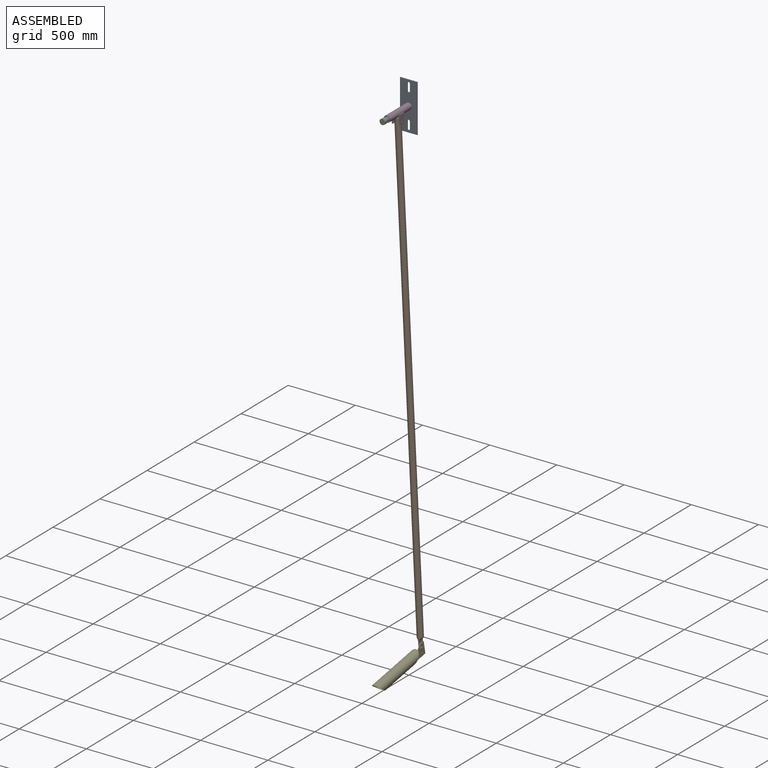
[diagram: assembled view]
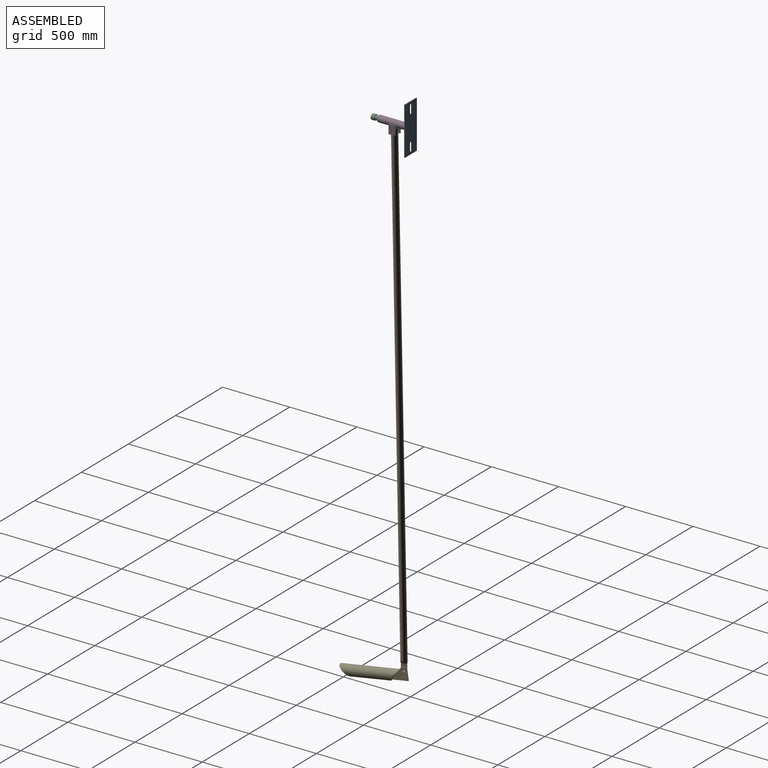
[diagram: assembled view, second angle]
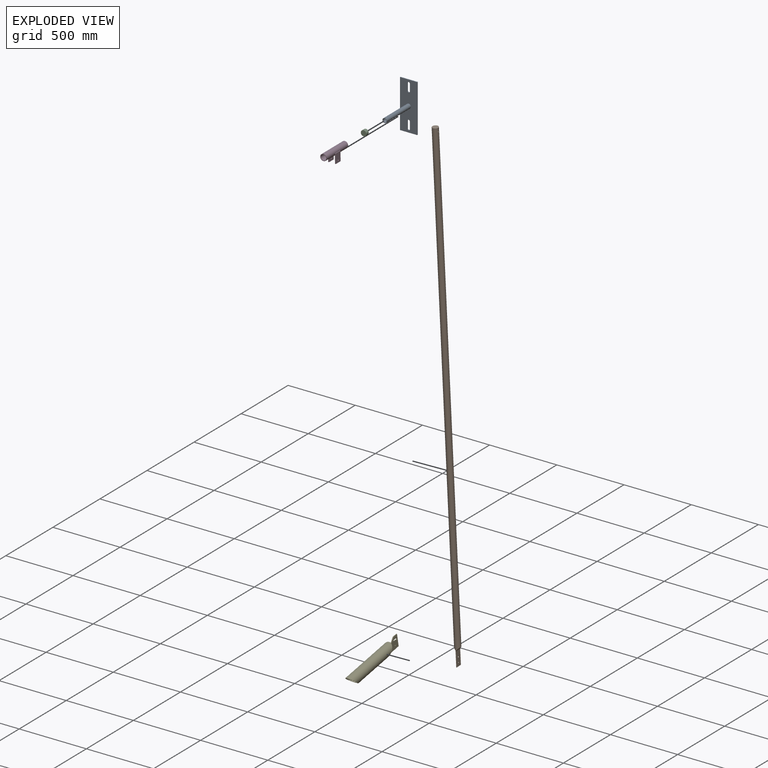
[diagram: exploded view]
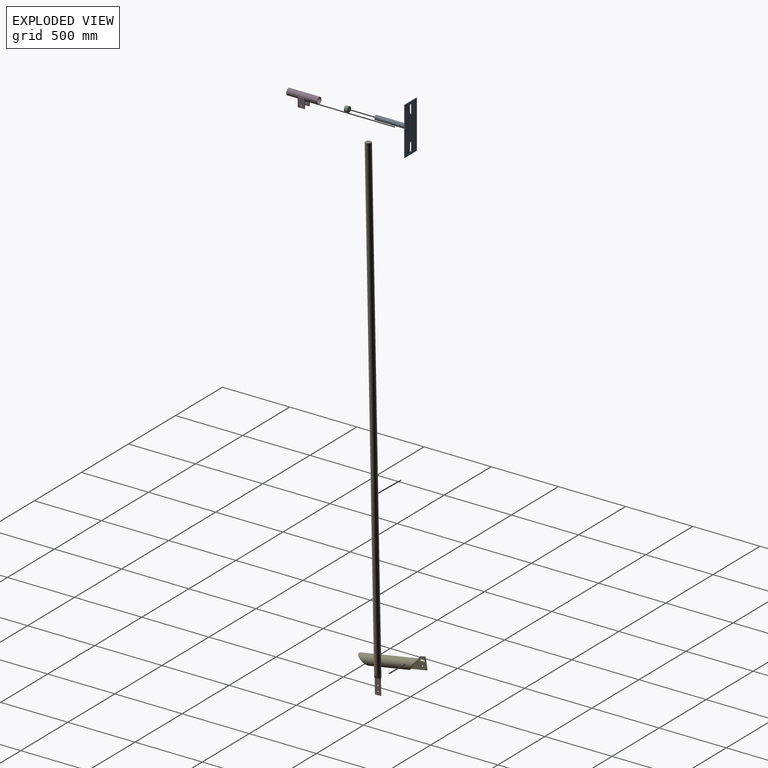
[diagram: exploded view, second angle]
ASSEMBLY  parts=5 mates=4
PART A: 18 faces, bbox 127x260.4x355.6 mm
  f0: plane 127x6.35mm, normal (0,0,-1), area 806.5mm2, adj f1,f11,f12,f13
  f1: plane 355.6x6.35mm, normal (1,0,0), area 2258.1mm2, adj f0,f2,f12,f13
  f2: plane 127x6.35mm, normal (0,0,1), area 806.5mm2, adj f1,f11,f12,f13
  f3: plane 50.8x6.35mm, normal (1,0,0), area 322.6mm2, adj f4,f9,f12,f13
  f4: cylinder r=9.53mm len=19.05mm, axis (0,1,0), area 190mm2, adj f3,f5,f12,f13
  f5: plane 50.8x6.35mm, normal (-1,0,0), area 322.6mm2, adj f4,f9,f12,f13
  f6: cylinder r=9.53mm len=19.05mm, axis (0,1,0), area 190mm2, adj f7,f10,f12,f13
  f7: plane 50.8x6.35mm, normal (1,0,0), area 322.6mm2, adj f6,f8,f12,f13
  f8: cylinder r=9.53mm len=19.05mm, axis (0,1,0), area 190mm2, adj f7,f10,f12,f13
  f9: cylinder r=9.53mm len=19.05mm, axis (0,1,0), area 190mm2, adj f3,f5,f12,f13
  f10: plane 50.8x6.35mm, normal (-1,0,0), area 322.6mm2, adj f6,f8,f12,f13
  f11: plane 355.6x6.35mm, normal (-1,0,0), area 2258.1mm2, adj f0,f2,f12,f13
  f12: plane 355.6x127mm, normal (0,-1,0), area 41779.5mm2, adj f0,f1,f2,f3,f4,f5,f6,f7
  f13: plane 355.6x127mm, normal (0,1,0), area 42655.7mm2, adj f0,f1,f2,f3,f4,f5,f6,f7
  f14: cylinder r=13.32mm len=254mm, axis (0,1,0), area 21261.4mm2, adj f16,f17
  f15: cylinder r=16.7mm len=254mm, axis (0,1,0), area 26652.8mm2, adj f12,f16
  f16: plane 33.4x33.4mm, normal (0,-1,0), area 318.6mm2, adj f14,f15
  f17: plane 26.64x26.64mm, normal (0,-1,0), area 557.6mm2, adj f14
PART B: 10 faces, bbox 44.5x44.5x3657.6 mm
  f0: cylinder r=22.23mm len=3657.6mm, axis (0,0,-1), area 493863.3mm2, adj f1,f2,f3,f4,f5,f6,f7
  f1: plane 111.13x44.29mm, normal (0,-1,0), area 4778.8mm2, adj f0,f5,f6,f8,f9
  f2: plane 111.13x44.29mm, normal (0,1,0), area 4778.8mm2, adj f0,f3,f5,f8,f9
  f3: extruded ~44.29x22.23mm, area 1079.3mm2, adj f0,f2
  f4: plane 44.45x44.45mm, normal (0,0,1), area 1551.8mm2, adj f0
  f5: plane 44.45x3.81mm, normal (0,0,-1), area 169.1mm2, adj f0,f1,f2
  f6: extruded ~44.29x22.23mm, area 1079.3mm2, adj f0,f1
  f7: cylinder r=4.76mm len=44.45mm, axis (0,1,0), area 1314.7mm2, adj f0
  f8: cylinder r=4.76mm len=9.53mm, axis (0,1,0), area 114mm2, adj f1,f2
  f9: cylinder r=4.76mm len=9.53mm, axis (0,1,0), area 114mm2, adj f1,f2
PART C: 3 faces, bbox 41x25.4x41 mm
  f0: cylinder r=20.51mm len=41.02mm, axis (0,1,0), area 3273.3mm2, adj f1,f2
  f1: plane 41.02x41.02mm, normal (0,-1,0), area 1321.6mm2, adj f0
  f2: plane 41.02x41.02mm, normal (0,1,0), area 1321.6mm2, adj f0
PART D: 18 faces, bbox 57.2x228.6x94.4 mm
  f0: cylinder r=24.13mm len=228.6mm, axis (0,1,0), area 33724mm2, adj f1,f2,f3,f4,f6,f8,f10,f11
  f1: plane 48.26x48.26mm, normal (0,-1,0), area 515.8mm2, adj f0,f17
  f2: plane 48.26x48.26mm, normal (0,1,0), area 515.8mm2, adj f0,f17
  f3: plane 50.8x4.45mm, normal (0,0,1), area 226mm2, adj f0,f6,f8,f9
  f4: plane 60.9x50.8mm, normal (-1,0,0), area 3022.7mm2, adj f0,f5,f6,f7,f8
  f5: plane 50.8x6.35mm, normal (0,0,-1), area 322.6mm2, adj f4,f6,f8,f9
  f6: plane 69.85x6.35mm, normal (0,1,0), area 432.4mm2, adj f0,f3,f4,f5,f9
  f7: cylinder r=4.76mm len=9.53mm, axis (1,0,0), area 190mm2, adj f4,f9
  f8: plane 69.85x6.35mm, normal (0,-1,0), area 432.4mm2, adj f0,f3,f4,f5,f9
  f9: plane 69.85x50.8mm, normal (1,0,0), area 3477.1mm2, adj f3,f5,f6,f7,f8
  f10: plane 50.8x4.45mm, normal (0,0,1), area 226mm2, adj f0,f13,f15,f16
  f11: plane 60.9x50.8mm, normal (1,0,0), area 3022.7mm2, adj f0,f12,f13,f14,f15
  f12: plane 50.8x6.35mm, normal (0,0,-1), area 322.6mm2, adj f11,f13,f15,f16
  f13: plane 69.85x6.35mm, normal (0,1,0), area 432.4mm2, adj f0,f10,f11,f12,f16
  f14: cylinder r=4.76mm len=9.53mm, axis (-1,0,0), area 190mm2, adj f11,f16
  f15: plane 69.85x6.35mm, normal (0,-1,0), area 432.4mm2, adj f0,f10,f11,f12,f16
  f16: plane 69.85x50.8mm, normal (-1,0,0), area 3477.1mm2, adj f10,f12,f13,f14,f15
  f17: cylinder r=20.45mm len=228.6mm, axis (0,-1,0), area 29368.8mm2, adj f1,f2
PART E: 22 faces, bbox 76.2x514.7x101.5 mm
  f0: plane 126.87x88.9mm, normal (-1,0,0), area 6935.2mm2, adj f2,f3,f13,f14,f15,f16,f17,f18
  f1: plane 126.87x88.9mm, normal (1,0,0), area 6934.9mm2, adj f2,f3,f4,f13,f14,f15,f16,f17
  f2: cylinder r=38.1mm len=451.48mm, axis (0,1,0), area 87788.4mm2, adj f0,f1,f3,f4,f5,f11,f12,f13
  f3: plane 71.41x71.41mm, normal (0,0.71,0.71), area 1819.3mm2, adj f0,f1,f2,f8,f11,f14
  f4: plane 76.07x76.07mm, normal (0,0.71,0.71), area 3390mm2, adj f1,f2,f8,f12
  f5: plane 76.2x76.07mm, normal (0,-0.71,0.71), area 1695.7mm2, adj f2,f6,f11,f12
  f6: cylinder r=32.54mm len=432.4mm, axis (0,1,0), area 73570.3mm2, adj f5,f7,f9,f10,f11,f12
  f7: plane 65.08x61.48mm, normal (0,-0.71,-0.71), area 3694.5mm2, adj f6,f8,f9,f10,f11,f12
  f8: cylinder r=12.7mm len=25.4mm, axis (0,0.71,0.71), area 408.2mm2, adj f3,f4,f7,f11,f12
  f9: extruded ~29.36x29.36mm, area 201.6mm2, adj f6,f7,f12
  f10: extruded ~29.36x29.36mm, area 201.6mm2, adj f6,f7,f11
  f11: plane 333.35x32.98mm, normal (1,0,0), area 1887.8mm2, adj f2,f3,f5,f6,f7,f8,f10
  f12: plane 333.35x32.98mm, normal (-1,0,0), area 1887.8mm2, adj f2,f4,f5,f6,f7,f8,f9
  f13: plane 30.06x30.06mm, normal (0,-0.71,-0.71), area 226mm2, adj f0,f1,f2,f15
  f14: plane 126.87x5.56mm, normal (0,0,1), area 705.7mm2, adj f0,f1,f3,f16
  f15: plane 38.1x5.56mm, normal (0,0,-1), area 211.9mm2, adj f0,f1,f13,f16
  f16: plane 88.9x5.56mm, normal (0,1,0), area 494.5mm2, adj f0,f1,f14,f15
  f17: cylinder r=4.76mm len=9.53mm, axis (-1,0,0), area 166.5mm2, adj f0,f1
  f18: cylinder r=33.34mm len=22.46mm, axis (-1,0,0), area 129.5mm2, adj f0,f1,f19,f21
  f19: cylinder r=4.76mm len=8.89mm, axis (-1,0,0), area 83.2mm2, adj f0,f1,f18,f20
  f20: cylinder r=42.86mm len=28.87mm, axis (-1,0,0), area 166.5mm2, adj f0,f1,f19,f21
  f21: cylinder r=4.76mm len=9.45mm, axis (-1,0,0), area 83.2mm2, adj f0,f1,f18,f20
PLACE A at identity fixed
PLACE B rot(axis=(0.03,0.01,-1),90deg) t=(81.3,9.62,-3615.18)mm
PLACE C t=(0,-257.18,0)mm
PLACE D rot(axis=(0,-1,0),1.3deg) t=(0,-117.48,0)mm
PLACE E rot(axis=(0,1,0.09),178.7deg) t=(72.42,-242.2,-3700.41)mm
MATE cylindrical D.f0 <-> A.f15  axis (0,1,0) through (0,-117.48,0)mm
MATE revolute B.f7 <-> D.f7  axis (1,0,0.02) through (-21.04,-117.48,-53.32)mm
MATE revolute E.f17 <-> B.f8  axis (-1,0,-0.02) through (84.13,11.09,-3656.38)mm
MATE fastened C.f0 <-> A.f14  axis (0,1,0) through (0,-257.18,0)mm
